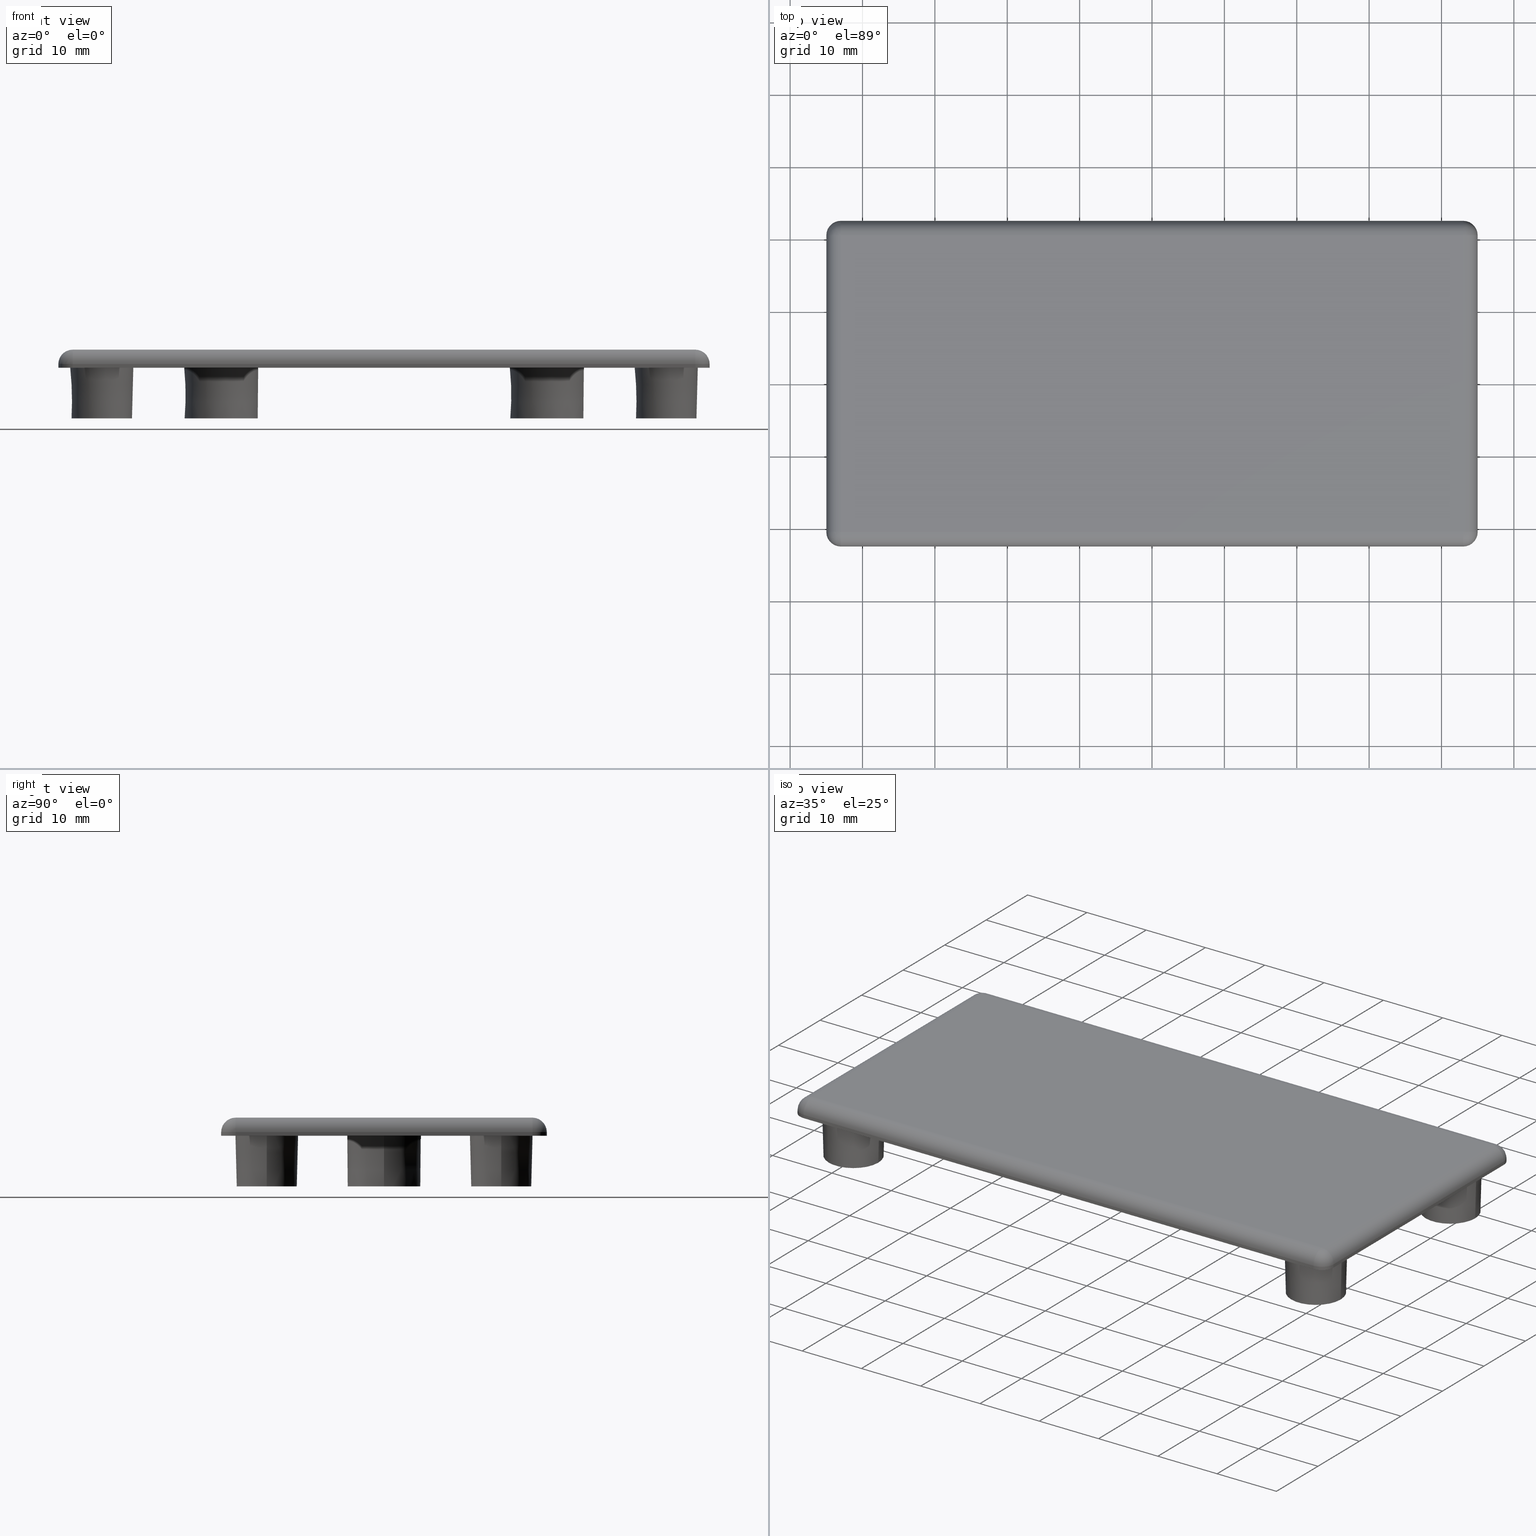
[diagram: canonical four-view strip — front | top / right | iso, engineering-drawing reading convention]
A machine part, canonical four-view strip (front | top / right | iso — engineering-drawing reading convention). The complete STEP part file that produces these views, byte-faithful:
ISO-10303-21;
HEADER;
/* Generated by software containing ST-Developer
 * from STEP Tools, Inc. (www.steptools.com) 
 */

FILE_DESCRIPTION(
/* description */ ('TAPPO 45X90 NERO - CAVA 10'),
/* implementation_level */ '2;1');

FILE_NAME(
/* name */ 
'Q:\\Catalogo\\2_Accessori Dierre\\Per Download Web e catalogo cartace
o\\CATALOGO TAPPI DI CHIUSURA\\PAGINA 92\\DTPTR0000064.stp',
/* time_stamp */ '2018-11-08T11:03:32+01:00',
/* author */ ('fzagni'),
/* organization */ (''),
/* preprocessor_version */ 'ST-DEVELOPER v16.1',
/* originating_system */ 'Autodesk Inventor 2016',
/* authorisation */ '');

FILE_SCHEMA (('AUTOMOTIVE_DESIGN { 1 0 10303 214 3 1 1 }'));
ENDSEC;

DATA;
#10=MECHANICAL_DESIGN_GEOMETRIC_PRESENTATION_REPRESENTATION('',(#13),#955);
#11=SHAPE_REPRESENTATION_RELATIONSHIP('SRR','None',#964,#12);
#12=ADVANCED_BREP_SHAPE_REPRESENTATION('',(#14),#954);
#13=STYLED_ITEM('',(#973),#14);
#14=MANIFOLD_SOLID_BREP('Solido1',#535);
#15=SPHERICAL_SURFACE('',#593,2.);
#16=SPHERICAL_SURFACE('',#597,2.);
#17=SPHERICAL_SURFACE('',#601,2.);
#18=SPHERICAL_SURFACE('',#607,2.);
#19=CYLINDRICAL_SURFACE('',#589,2.);
#20=CYLINDRICAL_SURFACE('',#596,2.);
#21=CYLINDRICAL_SURFACE('',#600,2.);
#22=CYLINDRICAL_SURFACE('',#605,2.);
#23=CYLINDRICAL_SURFACE('',#606,2.);
#24=CYLINDRICAL_SURFACE('',#611,2.);
#25=CYLINDRICAL_SURFACE('',#612,2.);
#26=CYLINDRICAL_SURFACE('',#613,2.);
#27=LINE('',#833,#47);
#28=LINE('',#837,#48);
#29=LINE('',#841,#49);
#30=LINE('',#844,#50);
#31=LINE('',#857,#51);
#32=LINE('',#859,#52);
#33=LINE('',#861,#53);
#34=LINE('',#862,#54);
#35=LINE('',#906,#55);
#36=LINE('',#914,#56);
#37=LINE('',#915,#57);
#38=LINE('',#921,#58);
#39=LINE('',#922,#59);
#40=LINE('',#930,#60);
#41=LINE('',#931,#61);
#42=LINE('',#933,#62);
#43=LINE('',#941,#63);
#44=LINE('',#942,#64);
#45=LINE('',#944,#65);
#46=LINE('',#946,#66);
#47=VECTOR('',#653,41.);
#48=VECTOR('',#656,86.);
#49=VECTOR('',#659,41.);
#50=VECTOR('',#662,86.);
#51=VECTOR('',#675,86.);
#52=VECTOR('',#676,41.);
#53=VECTOR('',#677,86.);
#54=VECTOR('',#678,41.);
#55=VECTOR('',#737,86.);
#56=VECTOR('',#750,0.5);
#57=VECTOR('',#751,0.5);
#58=VECTOR('',#760,0.5);
#59=VECTOR('',#761,0.5);
#60=VECTOR('',#772,0.5);
#61=VECTOR('',#773,0.5);
#62=VECTOR('',#776,41.);
#63=VECTOR('',#787,0.5);
#64=VECTOR('',#788,0.5);
#65=VECTOR('',#791,86.);
#66=VECTOR('',#794,41.);
#67=PLANE('',#543);
#68=PLANE('',#550);
#69=PLANE('',#551);
#70=PLANE('',#560);
#71=PLANE('',#561);
#72=PLANE('',#567);
#73=PLANE('',#573);
#74=PLANE('',#579);
#75=PLANE('',#580);
#76=PLANE('',#581);
#77=PLANE('',#582);
#78=PLANE('',#588);
#79=PLANE('',#592);
#80=PLANE('',#614);
#81=PLANE('',#615);
#82=PLANE('',#616);
#83=PLANE('',#617);
#84=PLANE('',#618);
#85=FACE_BOUND('',#152,.T.);
#86=FACE_BOUND('',#154,.T.);
#87=FACE_BOUND('',#156,.T.);
#88=FACE_BOUND('',#158,.T.);
#89=FACE_BOUND('',#160,.T.);
#90=FACE_BOUND('',#162,.T.);
#91=FACE_BOUND('',#164,.T.);
#92=FACE_BOUND('',#165,.T.);
#93=FACE_BOUND('',#166,.T.);
#94=FACE_BOUND('',#167,.T.);
#95=FACE_BOUND('',#168,.T.);
#96=FACE_BOUND('',#169,.T.);
#97=FACE_BOUND('',#173,.T.);
#98=FACE_BOUND('',#175,.T.);
#99=FACE_BOUND('',#177,.T.);
#100=FACE_BOUND('',#179,.T.);
#101=FACE_BOUND('',#181,.T.);
#102=FACE_BOUND('',#183,.T.);
#103=FACE_BOUND('',#185,.T.);
#104=FACE_BOUND('',#187,.T.);
#105=FACE_BOUND('',#189,.T.);
#106=FACE_BOUND('',#194,.T.);
#107=FACE_BOUND('',#196,.T.);
#108=FACE_BOUND('',#198,.T.);
#109=FACE_OUTER_BOUND('',#151,.T.);
#110=FACE_OUTER_BOUND('',#153,.T.);
#111=FACE_OUTER_BOUND('',#155,.T.);
#112=FACE_OUTER_BOUND('',#157,.T.);
#113=FACE_OUTER_BOUND('',#159,.T.);
#114=FACE_OUTER_BOUND('',#161,.T.);
#115=FACE_OUTER_BOUND('',#163,.T.);
#116=FACE_OUTER_BOUND('',#170,.T.);
#117=FACE_OUTER_BOUND('',#171,.T.);
#118=FACE_OUTER_BOUND('',#172,.T.);
#119=FACE_OUTER_BOUND('',#174,.T.);
#120=FACE_OUTER_BOUND('',#176,.T.);
#121=FACE_OUTER_BOUND('',#178,.T.);
#122=FACE_OUTER_BOUND('',#180,.T.);
#123=FACE_OUTER_BOUND('',#182,.T.);
#124=FACE_OUTER_BOUND('',#184,.T.);
#125=FACE_OUTER_BOUND('',#186,.T.);
#126=FACE_OUTER_BOUND('',#188,.T.);
#127=FACE_OUTER_BOUND('',#190,.T.);
#128=FACE_OUTER_BOUND('',#191,.T.);
#129=FACE_OUTER_BOUND('',#192,.T.);
#130=FACE_OUTER_BOUND('',#193,.T.);
#131=FACE_OUTER_BOUND('',#195,.T.);
#132=FACE_OUTER_BOUND('',#197,.T.);
#133=FACE_OUTER_BOUND('',#199,.T.);
#134=FACE_OUTER_BOUND('',#200,.T.);
#135=FACE_OUTER_BOUND('',#201,.T.);
#136=FACE_OUTER_BOUND('',#202,.T.);
#137=FACE_OUTER_BOUND('',#203,.T.);
#138=FACE_OUTER_BOUND('',#204,.T.);
#139=FACE_OUTER_BOUND('',#205,.T.);
#140=FACE_OUTER_BOUND('',#206,.T.);
#141=FACE_OUTER_BOUND('',#207,.T.);
#142=FACE_OUTER_BOUND('',#208,.T.);
#143=FACE_OUTER_BOUND('',#209,.T.);
#144=FACE_OUTER_BOUND('',#210,.T.);
#145=FACE_OUTER_BOUND('',#211,.T.);
#146=FACE_OUTER_BOUND('',#212,.T.);
#147=FACE_OUTER_BOUND('',#213,.T.);
#148=FACE_OUTER_BOUND('',#214,.T.);
#149=FACE_OUTER_BOUND('',#215,.T.);
#150=FACE_OUTER_BOUND('',#216,.T.);
#151=EDGE_LOOP('',(#361));
#152=EDGE_LOOP('',(#362));
#153=EDGE_LOOP('',(#363));
#154=EDGE_LOOP('',(#364));
#155=EDGE_LOOP('',(#365));
#156=EDGE_LOOP('',(#366));
#157=EDGE_LOOP('',(#367));
#158=EDGE_LOOP('',(#368));
#159=EDGE_LOOP('',(#369));
#160=EDGE_LOOP('',(#370));
#161=EDGE_LOOP('',(#371));
#162=EDGE_LOOP('',(#372));
#163=EDGE_LOOP('',(#373,#374,#375,#376,#377,#378,#379,#380));
#164=EDGE_LOOP('',(#381));
#165=EDGE_LOOP('',(#382));
#166=EDGE_LOOP('',(#383));
#167=EDGE_LOOP('',(#384));
#168=EDGE_LOOP('',(#385));
#169=EDGE_LOOP('',(#386));
#170=EDGE_LOOP('',(#387));
#171=EDGE_LOOP('',(#388,#389,#390,#391));
#172=EDGE_LOOP('',(#392));
#173=EDGE_LOOP('',(#393));
#174=EDGE_LOOP('',(#394));
#175=EDGE_LOOP('',(#395));
#176=EDGE_LOOP('',(#396));
#177=EDGE_LOOP('',(#397));
#178=EDGE_LOOP('',(#398));
#179=EDGE_LOOP('',(#399));
#180=EDGE_LOOP('',(#400));
#181=EDGE_LOOP('',(#401));
#182=EDGE_LOOP('',(#402));
#183=EDGE_LOOP('',(#403));
#184=EDGE_LOOP('',(#404));
#185=EDGE_LOOP('',(#405));
#186=EDGE_LOOP('',(#406));
#187=EDGE_LOOP('',(#407));
#188=EDGE_LOOP('',(#408));
#189=EDGE_LOOP('',(#409));
#190=EDGE_LOOP('',(#410));
#191=EDGE_LOOP('',(#411));
#192=EDGE_LOOP('',(#412));
#193=EDGE_LOOP('',(#413));
#194=EDGE_LOOP('',(#414));
#195=EDGE_LOOP('',(#415));
#196=EDGE_LOOP('',(#416));
#197=EDGE_LOOP('',(#417));
#198=EDGE_LOOP('',(#418));
#199=EDGE_LOOP('',(#419,#420,#421,#422));
#200=EDGE_LOOP('',(#423));
#201=EDGE_LOOP('',(#424,#425,#426));
#202=EDGE_LOOP('',(#427,#428,#429,#430));
#203=EDGE_LOOP('',(#431,#432,#433));
#204=EDGE_LOOP('',(#434,#435,#436,#437));
#205=EDGE_LOOP('',(#438,#439,#440));
#206=EDGE_LOOP('',(#441,#442,#443,#444));
#207=EDGE_LOOP('',(#445,#446,#447,#448));
#208=EDGE_LOOP('',(#449,#450,#451));
#209=EDGE_LOOP('',(#452,#453,#454,#455));
#210=EDGE_LOOP('',(#456,#457,#458,#459));
#211=EDGE_LOOP('',(#460,#461,#462,#463));
#212=EDGE_LOOP('',(#464,#465,#466,#467));
#213=EDGE_LOOP('',(#468,#469,#470,#471));
#214=EDGE_LOOP('',(#472));
#215=EDGE_LOOP('',(#473,#474,#475,#476));
#216=EDGE_LOOP('',(#477,#478,#479,#480));
#217=CIRCLE('',#538,3.8);
#218=CIRCLE('',#539,3.73891192546469);
#219=CIRCLE('',#541,5.05);
#220=CIRCLE('',#542,5.11108807453531);
#221=CIRCLE('',#545,3.8);
#222=CIRCLE('',#546,3.73891192546469);
#223=CIRCLE('',#548,5.05);
#224=CIRCLE('',#549,5.11108807453531);
#225=CIRCLE('',#552,2.);
#226=CIRCLE('',#553,2.);
#227=CIRCLE('',#554,2.);
#228=CIRCLE('',#555,2.);
#229=CIRCLE('',#556,4.35830145098431);
#230=CIRCLE('',#557,4.35830145098431);
#231=CIRCLE('',#558,4.35830145098431);
#232=CIRCLE('',#559,4.35830145098431);
#233=CIRCLE('',#563,2.925);
#234=CIRCLE('',#564,2.74169854901569);
#235=CIRCLE('',#566,4.175);
#236=CIRCLE('',#569,2.925);
#237=CIRCLE('',#570,2.74169854901569);
#238=CIRCLE('',#572,4.175);
#239=CIRCLE('',#575,2.925);
#240=CIRCLE('',#576,2.74169854901569);
#241=CIRCLE('',#578,4.175);
#242=CIRCLE('',#584,2.925);
#243=CIRCLE('',#585,2.74169854901569);
#244=CIRCLE('',#587,4.175);
#245=CIRCLE('',#590,2.);
#246=CIRCLE('',#591,2.);
#247=CIRCLE('',#594,2.);
#248=CIRCLE('',#595,2.);
#249=CIRCLE('',#598,2.);
#250=CIRCLE('',#599,2.);
#251=CIRCLE('',#602,2.);
#252=CIRCLE('',#603,2.);
#253=CIRCLE('',#604,2.);
#254=CIRCLE('',#608,2.);
#255=CIRCLE('',#609,2.);
#256=CIRCLE('',#610,2.);
#257=VERTEX_POINT('',#807);
#258=VERTEX_POINT('',#809);
#259=VERTEX_POINT('',#812);
#260=VERTEX_POINT('',#814);
#261=VERTEX_POINT('',#818);
#262=VERTEX_POINT('',#820);
#263=VERTEX_POINT('',#823);
#264=VERTEX_POINT('',#825);
#265=VERTEX_POINT('',#829);
#266=VERTEX_POINT('',#830);
#267=VERTEX_POINT('',#832);
#268=VERTEX_POINT('',#834);
#269=VERTEX_POINT('',#836);
#270=VERTEX_POINT('',#838);
#271=VERTEX_POINT('',#840);
#272=VERTEX_POINT('',#842);
#273=VERTEX_POINT('',#845);
#274=VERTEX_POINT('',#847);
#275=VERTEX_POINT('',#849);
#276=VERTEX_POINT('',#851);
#277=VERTEX_POINT('',#855);
#278=VERTEX_POINT('',#856);
#279=VERTEX_POINT('',#858);
#280=VERTEX_POINT('',#860);
#281=VERTEX_POINT('',#864);
#282=VERTEX_POINT('',#866);
#283=VERTEX_POINT('',#869);
#284=VERTEX_POINT('',#873);
#285=VERTEX_POINT('',#875);
#286=VERTEX_POINT('',#878);
#287=VERTEX_POINT('',#882);
#288=VERTEX_POINT('',#884);
#289=VERTEX_POINT('',#887);
#290=VERTEX_POINT('',#894);
#291=VERTEX_POINT('',#896);
#292=VERTEX_POINT('',#899);
#293=VERTEX_POINT('',#903);
#294=VERTEX_POINT('',#905);
#295=VERTEX_POINT('',#910);
#296=VERTEX_POINT('',#917);
#297=VERTEX_POINT('',#924);
#298=VERTEX_POINT('',#926);
#299=VERTEX_POINT('',#935);
#300=VERTEX_POINT('',#937);
#301=EDGE_CURVE('',#257,#257,#217,.T.);
#302=EDGE_CURVE('',#258,#258,#218,.T.);
#303=EDGE_CURVE('',#259,#259,#219,.T.);
#304=EDGE_CURVE('',#260,#260,#220,.T.);
#305=EDGE_CURVE('',#261,#261,#221,.T.);
#306=EDGE_CURVE('',#262,#262,#222,.T.);
#307=EDGE_CURVE('',#263,#263,#223,.T.);
#308=EDGE_CURVE('',#264,#264,#224,.T.);
#309=EDGE_CURVE('',#265,#266,#225,.T.);
#310=EDGE_CURVE('',#265,#267,#27,.T.);
#311=EDGE_CURVE('',#268,#267,#226,.T.);
#312=EDGE_CURVE('',#268,#269,#28,.T.);
#313=EDGE_CURVE('',#270,#269,#227,.T.);
#314=EDGE_CURVE('',#270,#271,#29,.T.);
#315=EDGE_CURVE('',#272,#271,#228,.T.);
#316=EDGE_CURVE('',#272,#266,#30,.T.);
#317=EDGE_CURVE('',#273,#273,#229,.T.);
#318=EDGE_CURVE('',#274,#274,#230,.T.);
#319=EDGE_CURVE('',#275,#275,#231,.T.);
#320=EDGE_CURVE('',#276,#276,#232,.T.);
#321=EDGE_CURVE('',#277,#278,#31,.T.);
#322=EDGE_CURVE('',#279,#277,#32,.T.);
#323=EDGE_CURVE('',#280,#279,#33,.T.);
#324=EDGE_CURVE('',#278,#280,#34,.T.);
#325=EDGE_CURVE('',#281,#281,#233,.T.);
#326=EDGE_CURVE('',#282,#282,#234,.T.);
#327=EDGE_CURVE('',#283,#283,#235,.T.);
#328=EDGE_CURVE('',#284,#284,#236,.T.);
#329=EDGE_CURVE('',#285,#285,#237,.T.);
#330=EDGE_CURVE('',#286,#286,#238,.T.);
#331=EDGE_CURVE('',#287,#287,#239,.T.);
#332=EDGE_CURVE('',#288,#288,#240,.T.);
#333=EDGE_CURVE('',#289,#289,#241,.T.);
#334=EDGE_CURVE('',#290,#290,#242,.T.);
#335=EDGE_CURVE('',#291,#291,#243,.T.);
#336=EDGE_CURVE('',#292,#292,#244,.T.);
#337=EDGE_CURVE('',#278,#293,#245,.F.);
#338=EDGE_CURVE('',#293,#294,#35,.T.);
#339=EDGE_CURVE('',#294,#277,#246,.F.);
#340=EDGE_CURVE('',#295,#278,#247,.F.);
#341=EDGE_CURVE('',#293,#295,#248,.F.);
#342=EDGE_CURVE('',#266,#293,#36,.T.);
#343=EDGE_CURVE('',#295,#265,#37,.T.);
#344=EDGE_CURVE('',#296,#294,#249,.F.);
#345=EDGE_CURVE('',#277,#296,#250,.F.);
#346=EDGE_CURVE('',#271,#296,#38,.T.);
#347=EDGE_CURVE('',#294,#272,#39,.T.);
#348=EDGE_CURVE('',#297,#280,#251,.F.);
#349=EDGE_CURVE('',#298,#297,#252,.F.);
#350=EDGE_CURVE('',#280,#298,#253,.F.);
#351=EDGE_CURVE('',#267,#298,#40,.T.);
#352=EDGE_CURVE('',#297,#268,#41,.T.);
#353=EDGE_CURVE('',#298,#295,#42,.T.);
#354=EDGE_CURVE('',#299,#279,#254,.F.);
#355=EDGE_CURVE('',#300,#299,#255,.F.);
#356=EDGE_CURVE('',#279,#300,#256,.F.);
#357=EDGE_CURVE('',#269,#300,#43,.T.);
#358=EDGE_CURVE('',#299,#270,#44,.T.);
#359=EDGE_CURVE('',#300,#297,#45,.T.);
#360=EDGE_CURVE('',#296,#299,#46,.T.);
#361=ORIENTED_EDGE('',*,*,#301,.F.);
#362=ORIENTED_EDGE('',*,*,#302,.F.);
#363=ORIENTED_EDGE('',*,*,#303,.F.);
#364=ORIENTED_EDGE('',*,*,#304,.F.);
#365=ORIENTED_EDGE('',*,*,#303,.T.);
#366=ORIENTED_EDGE('',*,*,#301,.T.);
#367=ORIENTED_EDGE('',*,*,#305,.F.);
#368=ORIENTED_EDGE('',*,*,#306,.F.);
#369=ORIENTED_EDGE('',*,*,#307,.F.);
#370=ORIENTED_EDGE('',*,*,#308,.F.);
#371=ORIENTED_EDGE('',*,*,#307,.T.);
#372=ORIENTED_EDGE('',*,*,#305,.T.);
#373=ORIENTED_EDGE('',*,*,#309,.F.);
#374=ORIENTED_EDGE('',*,*,#310,.T.);
#375=ORIENTED_EDGE('',*,*,#311,.F.);
#376=ORIENTED_EDGE('',*,*,#312,.T.);
#377=ORIENTED_EDGE('',*,*,#313,.F.);
#378=ORIENTED_EDGE('',*,*,#314,.T.);
#379=ORIENTED_EDGE('',*,*,#315,.F.);
#380=ORIENTED_EDGE('',*,*,#316,.T.);
#381=ORIENTED_EDGE('',*,*,#304,.T.);
#382=ORIENTED_EDGE('',*,*,#308,.T.);
#383=ORIENTED_EDGE('',*,*,#317,.T.);
#384=ORIENTED_EDGE('',*,*,#318,.T.);
#385=ORIENTED_EDGE('',*,*,#319,.T.);
#386=ORIENTED_EDGE('',*,*,#320,.T.);
#387=ORIENTED_EDGE('',*,*,#306,.T.);
#388=ORIENTED_EDGE('',*,*,#321,.F.);
#389=ORIENTED_EDGE('',*,*,#322,.F.);
#390=ORIENTED_EDGE('',*,*,#323,.F.);
#391=ORIENTED_EDGE('',*,*,#324,.F.);
#392=ORIENTED_EDGE('',*,*,#325,.F.);
#393=ORIENTED_EDGE('',*,*,#326,.F.);
#394=ORIENTED_EDGE('',*,*,#327,.F.);
#395=ORIENTED_EDGE('',*,*,#320,.F.);
#396=ORIENTED_EDGE('',*,*,#327,.T.);
#397=ORIENTED_EDGE('',*,*,#325,.T.);
#398=ORIENTED_EDGE('',*,*,#328,.F.);
#399=ORIENTED_EDGE('',*,*,#329,.F.);
#400=ORIENTED_EDGE('',*,*,#330,.F.);
#401=ORIENTED_EDGE('',*,*,#319,.F.);
#402=ORIENTED_EDGE('',*,*,#330,.T.);
#403=ORIENTED_EDGE('',*,*,#328,.T.);
#404=ORIENTED_EDGE('',*,*,#331,.F.);
#405=ORIENTED_EDGE('',*,*,#332,.F.);
#406=ORIENTED_EDGE('',*,*,#333,.F.);
#407=ORIENTED_EDGE('',*,*,#318,.F.);
#408=ORIENTED_EDGE('',*,*,#333,.T.);
#409=ORIENTED_EDGE('',*,*,#331,.T.);
#410=ORIENTED_EDGE('',*,*,#302,.T.);
#411=ORIENTED_EDGE('',*,*,#332,.T.);
#412=ORIENTED_EDGE('',*,*,#329,.T.);
#413=ORIENTED_EDGE('',*,*,#334,.F.);
#414=ORIENTED_EDGE('',*,*,#335,.F.);
#415=ORIENTED_EDGE('',*,*,#336,.F.);
#416=ORIENTED_EDGE('',*,*,#317,.F.);
#417=ORIENTED_EDGE('',*,*,#336,.T.);
#418=ORIENTED_EDGE('',*,*,#334,.T.);
#419=ORIENTED_EDGE('',*,*,#321,.T.);
#420=ORIENTED_EDGE('',*,*,#337,.T.);
#421=ORIENTED_EDGE('',*,*,#338,.T.);
#422=ORIENTED_EDGE('',*,*,#339,.T.);
#423=ORIENTED_EDGE('',*,*,#326,.T.);
#424=ORIENTED_EDGE('',*,*,#340,.F.);
#425=ORIENTED_EDGE('',*,*,#341,.F.);
#426=ORIENTED_EDGE('',*,*,#337,.F.);
#427=ORIENTED_EDGE('',*,*,#309,.T.);
#428=ORIENTED_EDGE('',*,*,#342,.T.);
#429=ORIENTED_EDGE('',*,*,#341,.T.);
#430=ORIENTED_EDGE('',*,*,#343,.T.);
#431=ORIENTED_EDGE('',*,*,#339,.F.);
#432=ORIENTED_EDGE('',*,*,#344,.F.);
#433=ORIENTED_EDGE('',*,*,#345,.F.);
#434=ORIENTED_EDGE('',*,*,#315,.T.);
#435=ORIENTED_EDGE('',*,*,#346,.T.);
#436=ORIENTED_EDGE('',*,*,#344,.T.);
#437=ORIENTED_EDGE('',*,*,#347,.T.);
#438=ORIENTED_EDGE('',*,*,#348,.F.);
#439=ORIENTED_EDGE('',*,*,#349,.F.);
#440=ORIENTED_EDGE('',*,*,#350,.F.);
#441=ORIENTED_EDGE('',*,*,#311,.T.);
#442=ORIENTED_EDGE('',*,*,#351,.T.);
#443=ORIENTED_EDGE('',*,*,#349,.T.);
#444=ORIENTED_EDGE('',*,*,#352,.T.);
#445=ORIENTED_EDGE('',*,*,#340,.T.);
#446=ORIENTED_EDGE('',*,*,#324,.T.);
#447=ORIENTED_EDGE('',*,*,#350,.T.);
#448=ORIENTED_EDGE('',*,*,#353,.T.);
#449=ORIENTED_EDGE('',*,*,#354,.F.);
#450=ORIENTED_EDGE('',*,*,#355,.F.);
#451=ORIENTED_EDGE('',*,*,#356,.F.);
#452=ORIENTED_EDGE('',*,*,#313,.T.);
#453=ORIENTED_EDGE('',*,*,#357,.T.);
#454=ORIENTED_EDGE('',*,*,#355,.T.);
#455=ORIENTED_EDGE('',*,*,#358,.T.);
#456=ORIENTED_EDGE('',*,*,#348,.T.);
#457=ORIENTED_EDGE('',*,*,#323,.T.);
#458=ORIENTED_EDGE('',*,*,#356,.T.);
#459=ORIENTED_EDGE('',*,*,#359,.T.);
#460=ORIENTED_EDGE('',*,*,#322,.T.);
#461=ORIENTED_EDGE('',*,*,#345,.T.);
#462=ORIENTED_EDGE('',*,*,#360,.T.);
#463=ORIENTED_EDGE('',*,*,#354,.T.);
#464=ORIENTED_EDGE('',*,*,#343,.F.);
#465=ORIENTED_EDGE('',*,*,#353,.F.);
#466=ORIENTED_EDGE('',*,*,#351,.F.);
#467=ORIENTED_EDGE('',*,*,#310,.F.);
#468=ORIENTED_EDGE('',*,*,#352,.F.);
#469=ORIENTED_EDGE('',*,*,#359,.F.);
#470=ORIENTED_EDGE('',*,*,#357,.F.);
#471=ORIENTED_EDGE('',*,*,#312,.F.);
#472=ORIENTED_EDGE('',*,*,#335,.T.);
#473=ORIENTED_EDGE('',*,*,#346,.F.);
#474=ORIENTED_EDGE('',*,*,#314,.F.);
#475=ORIENTED_EDGE('',*,*,#358,.F.);
#476=ORIENTED_EDGE('',*,*,#360,.F.);
#477=ORIENTED_EDGE('',*,*,#342,.F.);
#478=ORIENTED_EDGE('',*,*,#316,.F.);
#479=ORIENTED_EDGE('',*,*,#347,.F.);
#480=ORIENTED_EDGE('',*,*,#338,.F.);
#481=CONICAL_SURFACE('',#537,3.8,0.5);
#482=CONICAL_SURFACE('',#540,5.05,0.5);
#483=CONICAL_SURFACE('',#544,3.8,0.5);
#484=CONICAL_SURFACE('',#547,5.05,0.5);
#485=CONICAL_SURFACE('',#562,2.925,1.5);
#486=CONICAL_SURFACE('',#565,4.175,1.5);
#487=CONICAL_SURFACE('',#568,2.925,1.5);
#488=CONICAL_SURFACE('',#571,4.175,1.5);
#489=CONICAL_SURFACE('',#574,2.925,1.5);
#490=CONICAL_SURFACE('',#577,4.175,1.5);
#491=CONICAL_SURFACE('',#583,2.925,1.5);
#492=CONICAL_SURFACE('',#586,4.175,1.5);
#493=ADVANCED_FACE('',(#109,#85),#481,.F.);
#494=ADVANCED_FACE('',(#110,#86),#482,.T.);
#495=ADVANCED_FACE('',(#111,#87),#67,.F.);
#496=ADVANCED_FACE('',(#112,#88),#483,.F.);
#497=ADVANCED_FACE('',(#113,#89),#484,.T.);
#498=ADVANCED_FACE('',(#114,#90),#68,.F.);
#499=ADVANCED_FACE('',(#115,#91,#92,#93,#94,#95,#96),#69,.F.);
#500=ADVANCED_FACE('',(#116),#70,.F.);
#501=ADVANCED_FACE('',(#117),#71,.T.);
#502=ADVANCED_FACE('',(#118,#97),#485,.F.);
#503=ADVANCED_FACE('',(#119,#98),#486,.T.);
#504=ADVANCED_FACE('',(#120,#99),#72,.F.);
#505=ADVANCED_FACE('',(#121,#100),#487,.F.);
#506=ADVANCED_FACE('',(#122,#101),#488,.T.);
#507=ADVANCED_FACE('',(#123,#102),#73,.F.);
#508=ADVANCED_FACE('',(#124,#103),#489,.F.);
#509=ADVANCED_FACE('',(#125,#104),#490,.T.);
#510=ADVANCED_FACE('',(#126,#105),#74,.F.);
#511=ADVANCED_FACE('',(#127),#75,.F.);
#512=ADVANCED_FACE('',(#128),#76,.F.);
#513=ADVANCED_FACE('',(#129),#77,.F.);
#514=ADVANCED_FACE('',(#130,#106),#491,.F.);
#515=ADVANCED_FACE('',(#131,#107),#492,.T.);
#516=ADVANCED_FACE('',(#132,#108),#78,.F.);
#517=ADVANCED_FACE('',(#133),#19,.T.);
#518=ADVANCED_FACE('',(#134),#79,.F.);
#519=ADVANCED_FACE('',(#135),#15,.T.);
#520=ADVANCED_FACE('',(#136),#20,.T.);
#521=ADVANCED_FACE('',(#137),#16,.T.);
#522=ADVANCED_FACE('',(#138),#21,.T.);
#523=ADVANCED_FACE('',(#139),#17,.T.);
#524=ADVANCED_FACE('',(#140),#22,.T.);
#525=ADVANCED_FACE('',(#141),#23,.T.);
#526=ADVANCED_FACE('',(#142),#18,.T.);
#527=ADVANCED_FACE('',(#143),#24,.T.);
#528=ADVANCED_FACE('',(#144),#25,.T.);
#529=ADVANCED_FACE('',(#145),#26,.T.);
#530=ADVANCED_FACE('',(#146),#80,.T.);
#531=ADVANCED_FACE('',(#147),#81,.T.);
#532=ADVANCED_FACE('',(#148),#82,.F.);
#533=ADVANCED_FACE('',(#149),#83,.T.);
#534=ADVANCED_FACE('',(#150),#84,.T.);
#535=CLOSED_SHELL('',(#493,#494,#495,#496,#497,#498,#499,#500,#501,#502,
#503,#504,#505,#506,#507,#508,#509,#510,#511,#512,#513,#514,#515,#516,#517,
#518,#519,#520,#521,#522,#523,#524,#525,#526,#527,#528,#529,#530,#531,#532,
#533,#534));
#536=AXIS2_PLACEMENT_3D('placement',#805,#619,#620);
#537=AXIS2_PLACEMENT_3D('',#806,#621,#622);
#538=AXIS2_PLACEMENT_3D('',#808,#623,#624);
#539=AXIS2_PLACEMENT_3D('',#810,#625,#626);
#540=AXIS2_PLACEMENT_3D('',#811,#627,#628);
#541=AXIS2_PLACEMENT_3D('',#813,#629,#630);
#542=AXIS2_PLACEMENT_3D('',#815,#631,#632);
#543=AXIS2_PLACEMENT_3D('',#816,#633,#634);
#544=AXIS2_PLACEMENT_3D('',#817,#635,#636);
#545=AXIS2_PLACEMENT_3D('',#819,#637,#638);
#546=AXIS2_PLACEMENT_3D('',#821,#639,#640);
#547=AXIS2_PLACEMENT_3D('',#822,#641,#642);
#548=AXIS2_PLACEMENT_3D('',#824,#643,#644);
#549=AXIS2_PLACEMENT_3D('',#826,#645,#646);
#550=AXIS2_PLACEMENT_3D('',#827,#647,#648);
#551=AXIS2_PLACEMENT_3D('',#828,#649,#650);
#552=AXIS2_PLACEMENT_3D('',#831,#651,#652);
#553=AXIS2_PLACEMENT_3D('',#835,#654,#655);
#554=AXIS2_PLACEMENT_3D('',#839,#657,#658);
#555=AXIS2_PLACEMENT_3D('',#843,#660,#661);
#556=AXIS2_PLACEMENT_3D('',#846,#663,#664);
#557=AXIS2_PLACEMENT_3D('',#848,#665,#666);
#558=AXIS2_PLACEMENT_3D('',#850,#667,#668);
#559=AXIS2_PLACEMENT_3D('',#852,#669,#670);
#560=AXIS2_PLACEMENT_3D('',#853,#671,#672);
#561=AXIS2_PLACEMENT_3D('',#854,#673,#674);
#562=AXIS2_PLACEMENT_3D('',#863,#679,#680);
#563=AXIS2_PLACEMENT_3D('',#865,#681,#682);
#564=AXIS2_PLACEMENT_3D('',#867,#683,#684);
#565=AXIS2_PLACEMENT_3D('',#868,#685,#686);
#566=AXIS2_PLACEMENT_3D('',#870,#687,#688);
#567=AXIS2_PLACEMENT_3D('',#871,#689,#690);
#568=AXIS2_PLACEMENT_3D('',#872,#691,#692);
#569=AXIS2_PLACEMENT_3D('',#874,#693,#694);
#570=AXIS2_PLACEMENT_3D('',#876,#695,#696);
#571=AXIS2_PLACEMENT_3D('',#877,#697,#698);
#572=AXIS2_PLACEMENT_3D('',#879,#699,#700);
#573=AXIS2_PLACEMENT_3D('',#880,#701,#702);
#574=AXIS2_PLACEMENT_3D('',#881,#703,#704);
#575=AXIS2_PLACEMENT_3D('',#883,#705,#706);
#576=AXIS2_PLACEMENT_3D('',#885,#707,#708);
#577=AXIS2_PLACEMENT_3D('',#886,#709,#710);
#578=AXIS2_PLACEMENT_3D('',#888,#711,#712);
#579=AXIS2_PLACEMENT_3D('',#889,#713,#714);
#580=AXIS2_PLACEMENT_3D('',#890,#715,#716);
#581=AXIS2_PLACEMENT_3D('',#891,#717,#718);
#582=AXIS2_PLACEMENT_3D('',#892,#719,#720);
#583=AXIS2_PLACEMENT_3D('',#893,#721,#722);
#584=AXIS2_PLACEMENT_3D('',#895,#723,#724);
#585=AXIS2_PLACEMENT_3D('',#897,#725,#726);
#586=AXIS2_PLACEMENT_3D('',#898,#727,#728);
#587=AXIS2_PLACEMENT_3D('',#900,#729,#730);
#588=AXIS2_PLACEMENT_3D('',#901,#731,#732);
#589=AXIS2_PLACEMENT_3D('',#902,#733,#734);
#590=AXIS2_PLACEMENT_3D('',#904,#735,#736);
#591=AXIS2_PLACEMENT_3D('',#907,#738,#739);
#592=AXIS2_PLACEMENT_3D('',#908,#740,#741);
#593=AXIS2_PLACEMENT_3D('',#909,#742,#743);
#594=AXIS2_PLACEMENT_3D('',#911,#744,#745);
#595=AXIS2_PLACEMENT_3D('',#912,#746,#747);
#596=AXIS2_PLACEMENT_3D('',#913,#748,#749);
#597=AXIS2_PLACEMENT_3D('',#916,#752,#753);
#598=AXIS2_PLACEMENT_3D('',#918,#754,#755);
#599=AXIS2_PLACEMENT_3D('',#919,#756,#757);
#600=AXIS2_PLACEMENT_3D('',#920,#758,#759);
#601=AXIS2_PLACEMENT_3D('',#923,#762,#763);
#602=AXIS2_PLACEMENT_3D('',#925,#764,#765);
#603=AXIS2_PLACEMENT_3D('',#927,#766,#767);
#604=AXIS2_PLACEMENT_3D('',#928,#768,#769);
#605=AXIS2_PLACEMENT_3D('',#929,#770,#771);
#606=AXIS2_PLACEMENT_3D('',#932,#774,#775);
#607=AXIS2_PLACEMENT_3D('',#934,#777,#778);
#608=AXIS2_PLACEMENT_3D('',#936,#779,#780);
#609=AXIS2_PLACEMENT_3D('',#938,#781,#782);
#610=AXIS2_PLACEMENT_3D('',#939,#783,#784);
#611=AXIS2_PLACEMENT_3D('',#940,#785,#786);
#612=AXIS2_PLACEMENT_3D('',#943,#789,#790);
#613=AXIS2_PLACEMENT_3D('',#945,#792,#793);
#614=AXIS2_PLACEMENT_3D('',#947,#795,#796);
#615=AXIS2_PLACEMENT_3D('',#948,#797,#798);
#616=AXIS2_PLACEMENT_3D('',#949,#799,#800);
#617=AXIS2_PLACEMENT_3D('',#950,#801,#802);
#618=AXIS2_PLACEMENT_3D('',#951,#803,#804);
#619=DIRECTION('axis',(0.,0.,1.));
#620=DIRECTION('refdir',(1.,0.,0.));
#621=DIRECTION('center_axis',(0.,0.,-1.));
#622=DIRECTION('ref_axis',(-1.,0.,0.));
#623=DIRECTION('center_axis',(0.,0.,1.));
#624=DIRECTION('ref_axis',(-1.,0.,0.));
#625=DIRECTION('center_axis',(0.,0.,-1.));
#626=DIRECTION('ref_axis',(-1.,0.,0.));
#627=DIRECTION('center_axis',(0.,0.,1.));
#628=DIRECTION('ref_axis',(-1.,0.,0.));
#629=DIRECTION('center_axis',(0.,0.,-1.));
#630=DIRECTION('ref_axis',(-1.,0.,0.));
#631=DIRECTION('center_axis',(0.,0.,1.));
#632=DIRECTION('ref_axis',(-1.,0.,0.));
#633=DIRECTION('center_axis',(0.,0.,1.));
#634=DIRECTION('ref_axis',(1.,0.,0.));
#635=DIRECTION('center_axis',(0.,0.,-1.));
#636=DIRECTION('ref_axis',(-1.,0.,0.));
#637=DIRECTION('center_axis',(0.,0.,1.));
#638=DIRECTION('ref_axis',(-1.,0.,0.));
#639=DIRECTION('center_axis',(0.,0.,-1.));
#640=DIRECTION('ref_axis',(-1.,0.,0.));
#641=DIRECTION('center_axis',(0.,0.,1.));
#642=DIRECTION('ref_axis',(-1.,0.,0.));
#643=DIRECTION('center_axis',(0.,0.,-1.));
#644=DIRECTION('ref_axis',(-1.,0.,0.));
#645=DIRECTION('center_axis',(0.,0.,1.));
#646=DIRECTION('ref_axis',(-1.,0.,0.));
#647=DIRECTION('center_axis',(0.,0.,1.));
#648=DIRECTION('ref_axis',(1.,0.,0.));
#649=DIRECTION('center_axis',(0.,0.,1.));
#650=DIRECTION('ref_axis',(1.,0.,0.));
#651=DIRECTION('center_axis',(0.,0.,1.));
#652=DIRECTION('ref_axis',(0.707106781186546,0.707106781186549,0.));
#653=DIRECTION('',(1.97372982155583E-16,-1.,0.));
#654=DIRECTION('center_axis',(0.,0.,1.));
#655=DIRECTION('ref_axis',(0.707106781186549,-0.707106781186546,0.));
#656=DIRECTION('',(-1.,-1.97372982155583E-16,0.));
#657=DIRECTION('center_axis',(0.,0.,1.));
#658=DIRECTION('ref_axis',(-0.707106781186546,-0.707106781186549,0.));
#659=DIRECTION('',(1.97372982155583E-16,1.,0.));
#660=DIRECTION('center_axis',(0.,0.,1.));
#661=DIRECTION('ref_axis',(-0.707106781186549,0.707106781186546,0.));
#662=DIRECTION('',(1.,2.96059473233375E-16,0.));
#663=DIRECTION('center_axis',(0.,0.,1.));
#664=DIRECTION('ref_axis',(-1.,0.,0.));
#665=DIRECTION('center_axis',(0.,0.,1.));
#666=DIRECTION('ref_axis',(-1.,0.,0.));
#667=DIRECTION('center_axis',(0.,0.,1.));
#668=DIRECTION('ref_axis',(-1.,0.,0.));
#669=DIRECTION('center_axis',(0.,0.,1.));
#670=DIRECTION('ref_axis',(-1.,0.,0.));
#671=DIRECTION('center_axis',(0.,0.,1.));
#672=DIRECTION('ref_axis',(1.,0.,0.));
#673=DIRECTION('center_axis',(0.,0.,1.));
#674=DIRECTION('ref_axis',(1.,0.,0.));
#675=DIRECTION('',(1.,2.96059473233375E-16,0.));
#676=DIRECTION('',(1.97372982155583E-16,1.,0.));
#677=DIRECTION('',(-1.,-1.97372982155583E-16,0.));
#678=DIRECTION('',(1.97372982155583E-16,-1.,0.));
#679=DIRECTION('center_axis',(0.,0.,-1.));
#680=DIRECTION('ref_axis',(-1.,0.,0.));
#681=DIRECTION('center_axis',(0.,0.,1.));
#682=DIRECTION('ref_axis',(-1.,0.,0.));
#683=DIRECTION('center_axis',(0.,0.,-1.));
#684=DIRECTION('ref_axis',(-1.,0.,0.));
#685=DIRECTION('center_axis',(0.,0.,1.));
#686=DIRECTION('ref_axis',(-1.,0.,0.));
#687=DIRECTION('center_axis',(0.,0.,-1.));
#688=DIRECTION('ref_axis',(-1.,0.,0.));
#689=DIRECTION('center_axis',(0.,0.,1.));
#690=DIRECTION('ref_axis',(1.,0.,0.));
#691=DIRECTION('center_axis',(0.,0.,-1.));
#692=DIRECTION('ref_axis',(-1.,0.,0.));
#693=DIRECTION('center_axis',(0.,0.,1.));
#694=DIRECTION('ref_axis',(-1.,0.,0.));
#695=DIRECTION('center_axis',(0.,0.,-1.));
#696=DIRECTION('ref_axis',(-1.,0.,0.));
#697=DIRECTION('center_axis',(0.,0.,1.));
#698=DIRECTION('ref_axis',(-1.,0.,0.));
#699=DIRECTION('center_axis',(0.,0.,-1.));
#700=DIRECTION('ref_axis',(-1.,0.,0.));
#701=DIRECTION('center_axis',(0.,0.,1.));
#702=DIRECTION('ref_axis',(1.,0.,0.));
#703=DIRECTION('center_axis',(0.,0.,-1.));
#704=DIRECTION('ref_axis',(-1.,0.,0.));
#705=DIRECTION('center_axis',(0.,0.,1.));
#706=DIRECTION('ref_axis',(-1.,0.,0.));
#707=DIRECTION('center_axis',(0.,0.,-1.));
#708=DIRECTION('ref_axis',(-1.,0.,0.));
#709=DIRECTION('center_axis',(0.,0.,1.));
#710=DIRECTION('ref_axis',(-1.,0.,0.));
#711=DIRECTION('center_axis',(0.,0.,-1.));
#712=DIRECTION('ref_axis',(-1.,0.,0.));
#713=DIRECTION('center_axis',(0.,0.,1.));
#714=DIRECTION('ref_axis',(1.,0.,0.));
#715=DIRECTION('center_axis',(0.,0.,1.));
#716=DIRECTION('ref_axis',(1.,0.,0.));
#717=DIRECTION('center_axis',(0.,0.,1.));
#718=DIRECTION('ref_axis',(1.,0.,0.));
#719=DIRECTION('center_axis',(0.,0.,1.));
#720=DIRECTION('ref_axis',(1.,0.,0.));
#721=DIRECTION('center_axis',(0.,0.,-1.));
#722=DIRECTION('ref_axis',(-1.,0.,0.));
#723=DIRECTION('center_axis',(0.,0.,1.));
#724=DIRECTION('ref_axis',(-1.,0.,0.));
#725=DIRECTION('center_axis',(0.,0.,-1.));
#726=DIRECTION('ref_axis',(-1.,0.,0.));
#727=DIRECTION('center_axis',(0.,0.,1.));
#728=DIRECTION('ref_axis',(-1.,0.,0.));
#729=DIRECTION('center_axis',(0.,0.,-1.));
#730=DIRECTION('ref_axis',(-1.,0.,0.));
#731=DIRECTION('center_axis',(0.,0.,1.));
#732=DIRECTION('ref_axis',(1.,0.,0.));
#733=DIRECTION('center_axis',(-1.,-2.96059473233375E-16,0.));
#734=DIRECTION('ref_axis',(0.,0.707106781186548,0.707106781186547));
#735=DIRECTION('center_axis',(1.,-4.44089209850062E-15,0.));
#736=DIRECTION('ref_axis',(0.,0.,1.));
#737=DIRECTION('',(-1.,-2.96059473233375E-16,0.));
#738=DIRECTION('center_axis',(-1.,0.,0.));
#739=DIRECTION('ref_axis',(0.,1.,0.));
#740=DIRECTION('center_axis',(0.,0.,1.));
#741=DIRECTION('ref_axis',(1.,0.,0.));
#742=DIRECTION('center_axis',(0.408248290463859,-0.816496580927727,0.408248290463864));
#743=DIRECTION('ref_axis',(0.577350269189622,0.577350269189626,0.577350269189629));
#744=DIRECTION('center_axis',(0.,1.,4.44089209850063E-15));
#745=DIRECTION('ref_axis',(1.,0.,0.));
#746=DIRECTION('center_axis',(0.,0.,1.));
#747=DIRECTION('ref_axis',(0.,1.,0.));
#748=DIRECTION('center_axis',(0.,0.,1.));
#749=DIRECTION('ref_axis',(0.707106781186546,0.707106781186549,0.));
#750=DIRECTION('',(0.,0.,1.));
#751=DIRECTION('',(0.,0.,-1.));
#752=DIRECTION('center_axis',(-0.816496580927726,-0.408248290463863,-0.408248290463862));
#753=DIRECTION('ref_axis',(-0.577350269189625,0.577350269189627,0.577350269189626));
#754=DIRECTION('center_axis',(0.,0.,1.));
#755=DIRECTION('ref_axis',(-1.,0.,0.));
#756=DIRECTION('center_axis',(0.,1.,0.));
#757=DIRECTION('ref_axis',(0.,0.,1.));
#758=DIRECTION('center_axis',(0.,0.,1.));
#759=DIRECTION('ref_axis',(-0.707106781186549,0.707106781186546,0.));
#760=DIRECTION('',(0.,0.,1.));
#761=DIRECTION('',(0.,0.,-1.));
#762=DIRECTION('center_axis',(-0.816496580927726,-0.408248290463863,0.408248290463863));
#763=DIRECTION('ref_axis',(0.577350269189626,-0.577350269189626,0.577350269189626));
#764=DIRECTION('center_axis',(1.,0.,0.));
#765=DIRECTION('ref_axis',(0.,-1.,0.));
#766=DIRECTION('center_axis',(0.,0.,1.));
#767=DIRECTION('ref_axis',(1.,0.,0.));
#768=DIRECTION('center_axis',(0.,-1.,0.));
#769=DIRECTION('ref_axis',(0.,0.,1.));
#770=DIRECTION('center_axis',(0.,0.,1.));
#771=DIRECTION('ref_axis',(0.707106781186549,-0.707106781186546,0.));
#772=DIRECTION('',(0.,0.,1.));
#773=DIRECTION('',(0.,0.,-1.));
#774=DIRECTION('center_axis',(-1.97372982155583E-16,1.,0.));
#775=DIRECTION('ref_axis',(0.707106781186549,0.,0.707106781186546));
#776=DIRECTION('',(-1.97372982155583E-16,1.,0.));
#777=DIRECTION('center_axis',(-0.816496580927726,0.408248290463863,-0.408248290463863));
#778=DIRECTION('ref_axis',(-0.577350269189626,-0.577350269189626,0.577350269189626));
#779=DIRECTION('center_axis',(0.,-1.,0.));
#780=DIRECTION('ref_axis',(-1.,0.,0.));
#781=DIRECTION('center_axis',(0.,0.,1.));
#782=DIRECTION('ref_axis',(0.,-1.,0.));
#783=DIRECTION('center_axis',(-1.,0.,0.));
#784=DIRECTION('ref_axis',(0.,0.,1.));
#785=DIRECTION('center_axis',(0.,0.,1.));
#786=DIRECTION('ref_axis',(-0.707106781186546,-0.707106781186549,0.));
#787=DIRECTION('',(0.,0.,1.));
#788=DIRECTION('',(0.,0.,-1.));
#789=DIRECTION('center_axis',(1.,1.97372982155583E-16,0.));
#790=DIRECTION('ref_axis',(0.,-0.707106781186548,0.707106781186547));
#791=DIRECTION('',(1.,1.97372982155583E-16,0.));
#792=DIRECTION('center_axis',(-1.97372982155583E-16,-1.,0.));
#793=DIRECTION('ref_axis',(-0.707106781186549,0.,0.707106781186546));
#794=DIRECTION('',(-1.97372982155583E-16,-1.,0.));
#795=DIRECTION('center_axis',(1.,1.97372982155583E-16,0.));
#796=DIRECTION('ref_axis',(0.,1.,0.));
#797=DIRECTION('center_axis',(1.97372982155583E-16,-1.,0.));
#798=DIRECTION('ref_axis',(1.,3.5527136788005E-16,0.));
#799=DIRECTION('center_axis',(0.,0.,1.));
#800=DIRECTION('ref_axis',(1.,0.,0.));
#801=DIRECTION('center_axis',(-1.,1.97372982155583E-16,0.));
#802=DIRECTION('ref_axis',(0.,-1.,0.));
#803=DIRECTION('center_axis',(-2.96059473233375E-16,1.,0.));
#804=DIRECTION('ref_axis',(-1.,-3.5527136788005E-16,0.));
#805=CARTESIAN_POINT('',(0.,0.,0.));
#806=CARTESIAN_POINT('Origin',(-22.5,0.,-7.));
#807=CARTESIAN_POINT('',(-18.7,4.65365783675994E-16,-7.));
#808=CARTESIAN_POINT('Origin',(-22.5,0.,-7.));
#809=CARTESIAN_POINT('',(-18.7610880745353,-4.5788465218142E-16,0.));
#810=CARTESIAN_POINT('Origin',(-22.5,0.,0.));
#811=CARTESIAN_POINT('Origin',(-22.5,0.,-7.));
#812=CARTESIAN_POINT('',(-17.45,6.18446633569413E-16,-7.));
#813=CARTESIAN_POINT('Origin',(-22.5,0.,-7.));
#814=CARTESIAN_POINT('',(-17.3889119254647,6.25927765063988E-16,0.));
#815=CARTESIAN_POINT('Origin',(-22.5,0.,0.));
#816=CARTESIAN_POINT('Origin',(-22.5,9.16025597875542E-17,-7.));
#817=CARTESIAN_POINT('Origin',(22.5,0.,-7.));
#818=CARTESIAN_POINT('',(26.3,4.65365783675994E-16,-7.));
#819=CARTESIAN_POINT('Origin',(22.5,0.,-7.));
#820=CARTESIAN_POINT('',(26.2389119254647,-4.5788465218142E-16,0.));
#821=CARTESIAN_POINT('Origin',(22.5,0.,0.));
#822=CARTESIAN_POINT('Origin',(22.5,0.,-7.));
#823=CARTESIAN_POINT('',(27.55,6.18446633569413E-16,-7.));
#824=CARTESIAN_POINT('Origin',(22.5,0.,-7.));
#825=CARTESIAN_POINT('',(27.6110880745353,6.25927765063988E-16,0.));
#826=CARTESIAN_POINT('Origin',(22.5,0.,0.));
#827=CARTESIAN_POINT('Origin',(22.5,9.16025597875542E-17,-7.));
#828=CARTESIAN_POINT('Origin',(9.86864910777917E-16,-6.16790569236198E-15,
0.));
#829=CARTESIAN_POINT('',(45.,20.5,0.));
#830=CARTESIAN_POINT('',(43.,22.5,0.));
#831=CARTESIAN_POINT('Origin',(43.,20.5,0.));
#832=CARTESIAN_POINT('',(45.,-20.5,0.));
#833=CARTESIAN_POINT('',(45.,22.5,0.));
#834=CARTESIAN_POINT('',(43.,-22.5,0.));
#835=CARTESIAN_POINT('Origin',(43.,-20.5,0.));
#836=CARTESIAN_POINT('',(-43.,-22.5,0.));
#837=CARTESIAN_POINT('',(45.,-22.5,0.));
#838=CARTESIAN_POINT('',(-45.,-20.5,0.));
#839=CARTESIAN_POINT('Origin',(-43.,-20.5,0.));
#840=CARTESIAN_POINT('',(-45.,20.5,0.));
#841=CARTESIAN_POINT('',(-45.,-22.5,0.));
#842=CARTESIAN_POINT('',(-43.,22.5,0.));
#843=CARTESIAN_POINT('Origin',(-43.,20.5,0.));
#844=CARTESIAN_POINT('',(-45.,22.5,0.));
#845=CARTESIAN_POINT('',(-34.6416985490157,16.2,0.));
#846=CARTESIAN_POINT('Origin',(-39.,16.2,0.));
#847=CARTESIAN_POINT('',(43.3583014509843,16.2,0.));
#848=CARTESIAN_POINT('Origin',(39.,16.2,0.));
#849=CARTESIAN_POINT('',(-34.6416985490157,-16.2,0.));
#850=CARTESIAN_POINT('Origin',(-39.,-16.2,0.));
#851=CARTESIAN_POINT('',(43.3583014509843,-16.2,0.));
#852=CARTESIAN_POINT('Origin',(39.,-16.2,0.));
#853=CARTESIAN_POINT('Origin',(9.86864910777917E-16,-6.16790569236198E-15,
0.));
#854=CARTESIAN_POINT('Origin',(0.,-4.44089209850063E-15,2.5));
#855=CARTESIAN_POINT('',(-43.,20.5,2.5));
#856=CARTESIAN_POINT('',(43.,20.5,2.5));
#857=CARTESIAN_POINT('',(22.5,20.5,2.5));
#858=CARTESIAN_POINT('',(-43.,-20.5,2.5));
#859=CARTESIAN_POINT('',(-43.,11.25,2.5));
#860=CARTESIAN_POINT('',(43.,-20.5,2.5));
#861=CARTESIAN_POINT('',(-22.5,-20.5,2.5));
#862=CARTESIAN_POINT('',(43.,-11.25,2.5));
#863=CARTESIAN_POINT('Origin',(39.,-16.2,-7.));
#864=CARTESIAN_POINT('',(41.925,-16.2,-7.));
#865=CARTESIAN_POINT('Origin',(39.,-16.2,-7.));
#866=CARTESIAN_POINT('',(41.7416985490157,-16.2,0.));
#867=CARTESIAN_POINT('Origin',(39.,-16.2,0.));
#868=CARTESIAN_POINT('Origin',(39.,-16.2,-7.));
#869=CARTESIAN_POINT('',(43.175,-16.2,-7.));
#870=CARTESIAN_POINT('Origin',(39.,-16.2,-7.));
#871=CARTESIAN_POINT('Origin',(39.,-16.2,-7.));
#872=CARTESIAN_POINT('Origin',(-39.,-16.2,-7.));
#873=CARTESIAN_POINT('',(-36.075,-16.2,-7.));
#874=CARTESIAN_POINT('Origin',(-39.,-16.2,-7.));
#875=CARTESIAN_POINT('',(-36.2583014509843,-16.2,0.));
#876=CARTESIAN_POINT('Origin',(-39.,-16.2,0.));
#877=CARTESIAN_POINT('Origin',(-39.,-16.2,-7.));
#878=CARTESIAN_POINT('',(-34.825,-16.2,-7.));
#879=CARTESIAN_POINT('Origin',(-39.,-16.2,-7.));
#880=CARTESIAN_POINT('Origin',(-39.,-16.2,-7.));
#881=CARTESIAN_POINT('Origin',(39.,16.2,-7.));
#882=CARTESIAN_POINT('',(41.925,16.2,-7.));
#883=CARTESIAN_POINT('Origin',(39.,16.2,-7.));
#884=CARTESIAN_POINT('',(41.7416985490157,16.2,0.));
#885=CARTESIAN_POINT('Origin',(39.,16.2,0.));
#886=CARTESIAN_POINT('Origin',(39.,16.2,-7.));
#887=CARTESIAN_POINT('',(43.175,16.2,-7.));
#888=CARTESIAN_POINT('Origin',(39.,16.2,-7.));
#889=CARTESIAN_POINT('Origin',(39.,16.2,-7.));
#890=CARTESIAN_POINT('Origin',(9.86864910777917E-16,-6.16790569236198E-15,
0.));
#891=CARTESIAN_POINT('Origin',(9.86864910777917E-16,-6.16790569236198E-15,
0.));
#892=CARTESIAN_POINT('Origin',(9.86864910777917E-16,-6.16790569236198E-15,
0.));
#893=CARTESIAN_POINT('Origin',(-39.,16.2,-7.));
#894=CARTESIAN_POINT('',(-36.075,16.2,-7.));
#895=CARTESIAN_POINT('Origin',(-39.,16.2,-7.));
#896=CARTESIAN_POINT('',(-36.2583014509843,16.2,0.));
#897=CARTESIAN_POINT('Origin',(-39.,16.2,0.));
#898=CARTESIAN_POINT('Origin',(-39.,16.2,-7.));
#899=CARTESIAN_POINT('',(-34.825,16.2,-7.));
#900=CARTESIAN_POINT('Origin',(-39.,16.2,-7.));
#901=CARTESIAN_POINT('Origin',(-39.,16.2,-7.));
#902=CARTESIAN_POINT('Origin',(22.5,20.5,0.5));
#903=CARTESIAN_POINT('',(43.,22.5,0.5));
#904=CARTESIAN_POINT('Origin',(43.,20.5,0.5));
#905=CARTESIAN_POINT('',(-43.,22.5,0.5));
#906=CARTESIAN_POINT('',(22.5,22.5,0.5));
#907=CARTESIAN_POINT('Origin',(-43.,20.5,0.5));
#908=CARTESIAN_POINT('Origin',(9.86864910777917E-16,-6.16790569236198E-15,
0.));
#909=CARTESIAN_POINT('Origin',(43.,20.5,0.5));
#910=CARTESIAN_POINT('',(45.,20.5,0.5));
#911=CARTESIAN_POINT('Origin',(43.,20.5,0.5));
#912=CARTESIAN_POINT('Origin',(43.,20.5,0.5));
#913=CARTESIAN_POINT('Origin',(43.,20.5,0.));
#914=CARTESIAN_POINT('',(43.,22.5,0.));
#915=CARTESIAN_POINT('',(45.,20.5,0.));
#916=CARTESIAN_POINT('Origin',(-43.,20.5,0.5));
#917=CARTESIAN_POINT('',(-45.,20.5,0.5));
#918=CARTESIAN_POINT('Origin',(-43.,20.5,0.5));
#919=CARTESIAN_POINT('Origin',(-43.,20.5,0.5));
#920=CARTESIAN_POINT('Origin',(-43.,20.5,0.));
#921=CARTESIAN_POINT('',(-45.,20.5,0.));
#922=CARTESIAN_POINT('',(-43.,22.5,0.));
#923=CARTESIAN_POINT('Origin',(43.,-20.5,0.5));
#924=CARTESIAN_POINT('',(43.,-22.5,0.5));
#925=CARTESIAN_POINT('Origin',(43.,-20.5,0.5));
#926=CARTESIAN_POINT('',(45.,-20.5,0.5));
#927=CARTESIAN_POINT('Origin',(43.,-20.5,0.5));
#928=CARTESIAN_POINT('Origin',(43.,-20.5,0.5));
#929=CARTESIAN_POINT('Origin',(43.,-20.5,0.));
#930=CARTESIAN_POINT('',(45.,-20.5,0.));
#931=CARTESIAN_POINT('',(43.,-22.5,0.));
#932=CARTESIAN_POINT('Origin',(43.,-11.25,0.5));
#933=CARTESIAN_POINT('',(45.,-11.25,0.5));
#934=CARTESIAN_POINT('Origin',(-43.,-20.5,0.5));
#935=CARTESIAN_POINT('',(-45.,-20.5,0.5));
#936=CARTESIAN_POINT('Origin',(-43.,-20.5,0.5));
#937=CARTESIAN_POINT('',(-43.,-22.5,0.5));
#938=CARTESIAN_POINT('Origin',(-43.,-20.5,0.5));
#939=CARTESIAN_POINT('Origin',(-43.,-20.5,0.5));
#940=CARTESIAN_POINT('Origin',(-43.,-20.5,0.));
#941=CARTESIAN_POINT('',(-43.,-22.5,0.));
#942=CARTESIAN_POINT('',(-45.,-20.5,0.));
#943=CARTESIAN_POINT('Origin',(-22.5,-20.5,0.5));
#944=CARTESIAN_POINT('',(-22.5,-22.5,0.5));
#945=CARTESIAN_POINT('Origin',(-43.,11.25,0.5));
#946=CARTESIAN_POINT('',(-45.,11.25,0.5));
#947=CARTESIAN_POINT('Origin',(45.,-22.5,0.));
#948=CARTESIAN_POINT('Origin',(-45.,-22.5,0.));
#949=CARTESIAN_POINT('Origin',(9.86864910777917E-16,-6.16790569236198E-15,
0.));
#950=CARTESIAN_POINT('Origin',(-45.,22.5,0.));
#951=CARTESIAN_POINT('Origin',(45.,22.5,0.));
#952=UNCERTAINTY_MEASURE_WITH_UNIT(LENGTH_MEASURE(0.01),#956,
'DISTANCE_ACCURACY_VALUE',
'Maximum model space distance between geometric entities at asserted c
onnectivities');
#953=UNCERTAINTY_MEASURE_WITH_UNIT(LENGTH_MEASURE(1.E-6),#956,
'DISTANCE_ACCURACY_VALUE',
'Maximum model space distance between geometric entities at asserted c
onnectivities');
#954=(
GEOMETRIC_REPRESENTATION_CONTEXT(3)
GLOBAL_UNCERTAINTY_ASSIGNED_CONTEXT((#952))
GLOBAL_UNIT_ASSIGNED_CONTEXT((#956,#959,#957))
REPRESENTATION_CONTEXT('','3D')
);
#955=(
GEOMETRIC_REPRESENTATION_CONTEXT(3)
GLOBAL_UNCERTAINTY_ASSIGNED_CONTEXT((#953))
GLOBAL_UNIT_ASSIGNED_CONTEXT((#956,#959,#957))
REPRESENTATION_CONTEXT('','3D')
);
#956=(
LENGTH_UNIT()
NAMED_UNIT(*)
SI_UNIT(.MILLI.,.METRE.)
);
#957=(
NAMED_UNIT(*)
SI_UNIT($,.STERADIAN.)
SOLID_ANGLE_UNIT()
);
#958=DIMENSIONAL_EXPONENTS(0.,0.,0.,0.,0.,0.,0.);
#959=(
CONVERSION_BASED_UNIT('degree',#961)
NAMED_UNIT(#958)
PLANE_ANGLE_UNIT()
);
#960=(
NAMED_UNIT(*)
PLANE_ANGLE_UNIT()
SI_UNIT($,.RADIAN.)
);
#961=PLANE_ANGLE_MEASURE_WITH_UNIT(PLANE_ANGLE_MEASURE(0.01745329252),#960);
#962=SHAPE_DEFINITION_REPRESENTATION(#963,#964);
#963=PRODUCT_DEFINITION_SHAPE('',$,#966);
#964=SHAPE_REPRESENTATION('',(#536),#954);
#965=PRODUCT_DEFINITION_CONTEXT('part definition',#970,'design');
#966=PRODUCT_DEFINITION('DTPTR0000064','DTPTR0000064',#967,#965);
#967=PRODUCT_DEFINITION_FORMATION('','A',#972);
#968=PRODUCT_RELATED_PRODUCT_CATEGORY('DTPTR0000064','DTPTR0000064',(#972));
#969=APPLICATION_PROTOCOL_DEFINITION('international standard',
'automotive_design',2009,#970);
#970=APPLICATION_CONTEXT(
'Core Data for Automotive Mechanical Design Process');
#971=PRODUCT_CONTEXT('part definition',#970,'mechanical');
#972=PRODUCT('DTPTR0000064','DTPTR0000064',$,(#971));
#973=PRESENTATION_STYLE_ASSIGNMENT((#974));
#974=SURFACE_STYLE_USAGE(.BOTH.,#975);
#975=SURFACE_SIDE_STYLE('',(#976));
#976=SURFACE_STYLE_FILL_AREA(#977);
#977=FILL_AREA_STYLE('',(#978));
#978=FILL_AREA_STYLE_COLOUR('',#979);
#979=COLOUR_RGB('',0.16078431372549,0.16078431372549,0.16078431372549);
ENDSEC;
END-ISO-10303-21;
